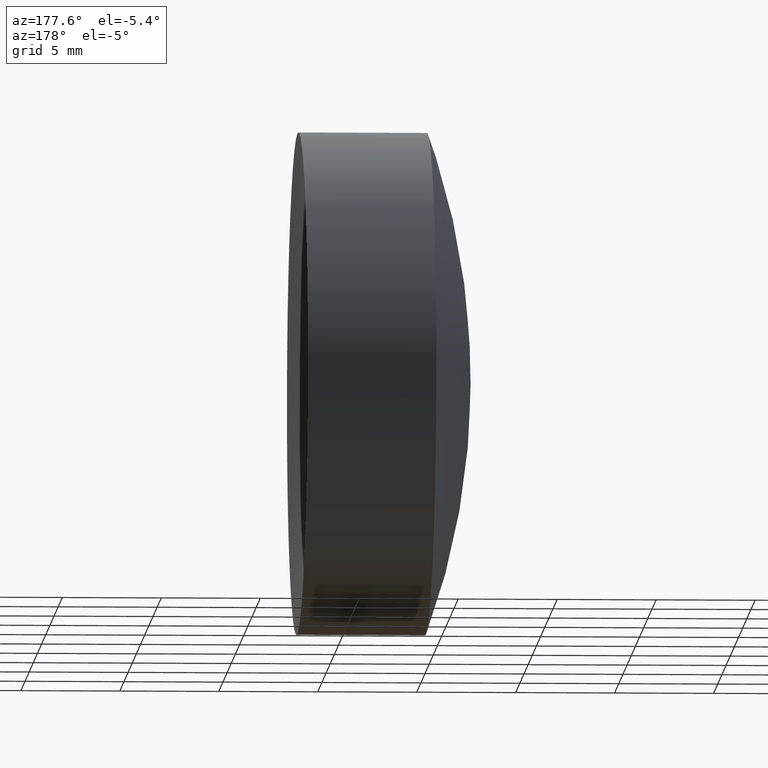
[diagram: clean part render]
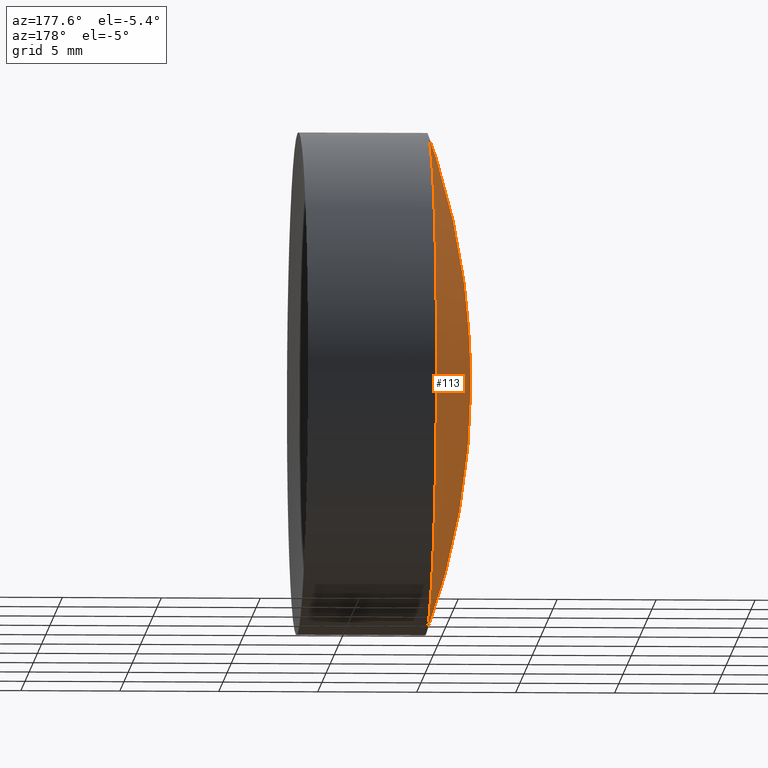
[diagram: same view with one face highlighted and labeled with its STEP entity id]
A machine part, auxiliary view. The second image highlights one B-rep face of the part: STEP entity #113.
In plain terms, the highlighted spherical surface has radius 36.9 mm.
Its self-contained STEP definition (entity closure, byte-faithful):
#14 = CARTESIAN_POINT ( 'NONE',  ( 50.58156345236027800, 0.0000000000000000000, 0.0000000000000000000 ) ) ;
#20 = AXIS2_PLACEMENT_3D ( 'NONE', #45, #276, #55 ) ;
#27 = DIRECTION ( 'NONE',  ( 0.0000000000000000000, 0.0000000000000000000, 1.000000000000000000 ) ) ;
#35 = AXIS2_PLACEMENT_3D ( 'NONE', #78, #107, #158 ) ;
#45 = CARTESIAN_POINT ( 'NONE',  ( 85.22719809801223800, 0.0000000000000000000, 1.005188016315488500E-014 ) ) ;
#50 = DIRECTION ( 'NONE',  ( 0.0000000000000000000, 0.0000000000000000000, 1.000000000000000000 ) ) ;
#55 = DIRECTION ( 'NONE',  ( 0.0000000000000000000, 0.0000000000000000000, -1.000000000000000000 ) ) ;
#77 = SPHERICAL_SURFACE ( 'NONE', #20, 36.89999999999999900 ) ;
#78 = CARTESIAN_POINT ( 'NONE',  ( 85.22719809801223800, 0.0000000000000000000, 1.005188016315488500E-014 ) ) ;
#89 = EDGE_CURVE ( 'NONE', #345, #212, #119, .T. ) ;
#96 = CARTESIAN_POINT ( 'NONE',  ( 50.58156345236027800, -1.555301434917137600E-015, 12.70000000000000300 ) ) ;
#107 = DIRECTION ( 'NONE',  ( 0.0000000000000000000, -1.000000000000000000, -1.224646799147353200E-016 ) ) ;
#109 = EDGE_CURVE ( 'NONE', #345, #112, #264, .T. ) ;
#112 = VERTEX_POINT ( 'NONE', #258 ) ;
#113 = ADVANCED_FACE ( 'NONE', ( #281 ), #77, .T. ) ;
#116 = EDGE_CURVE ( 'NONE', #212, #112, #144, .T. ) ;
#119 = CIRCLE ( 'NONE', #267, 12.69999999999999900 ) ;
#129 = CARTESIAN_POINT ( 'NONE',  ( 50.58156345236027800, 0.0000000000000000000, -12.69999999999999200 ) ) ;
#133 = ORIENTED_EDGE ( 'NONE', *, *, #116, .T. ) ;
#138 = ORIENTED_EDGE ( 'NONE', *, *, #109, .F. ) ;
#144 = CIRCLE ( 'NONE', #317, 36.89999999999999900 ) ;
#158 = DIRECTION ( 'NONE',  ( 0.0000000000000000000, 1.224646799147353000E-016, -1.000000000000000000 ) ) ;
#177 = EDGE_LOOP ( 'NONE', ( #138, #234, #133 ) ) ;
#212 = VERTEX_POINT ( 'NONE', #129 ) ;
#234 = ORIENTED_EDGE ( 'NONE', *, *, #89, .T. ) ;
#235 = CARTESIAN_POINT ( 'NONE',  ( 85.22719809801223800, 0.0000000000000000000, 1.005188016315488500E-014 ) ) ;
#258 = CARTESIAN_POINT ( 'NONE',  ( 48.32719809801224600, 0.0000000000000000000, 7.792406818728018300E-015 ) ) ;
#261 = DIRECTION ( 'NONE',  ( 0.0000000000000000000, 1.000000000000000000, -0.0000000000000000000 ) ) ;
#264 = CIRCLE ( 'NONE', #35, 36.89999999999999900 ) ;
#267 = AXIS2_PLACEMENT_3D ( 'NONE', #14, #347, #50 ) ;
#276 = DIRECTION ( 'NONE',  ( -0.0000000000000000000, -1.000000000000000000, -0.0000000000000000000 ) ) ;
#281 = FACE_OUTER_BOUND ( 'NONE', #177, .T. ) ;
#317 = AXIS2_PLACEMENT_3D ( 'NONE', #235, #261, #27 ) ;
#345 = VERTEX_POINT ( 'NONE', #96 ) ;
#347 = DIRECTION ( 'NONE',  ( -1.000000000000000000, -0.0000000000000000000, -0.0000000000000000000 ) ) ;